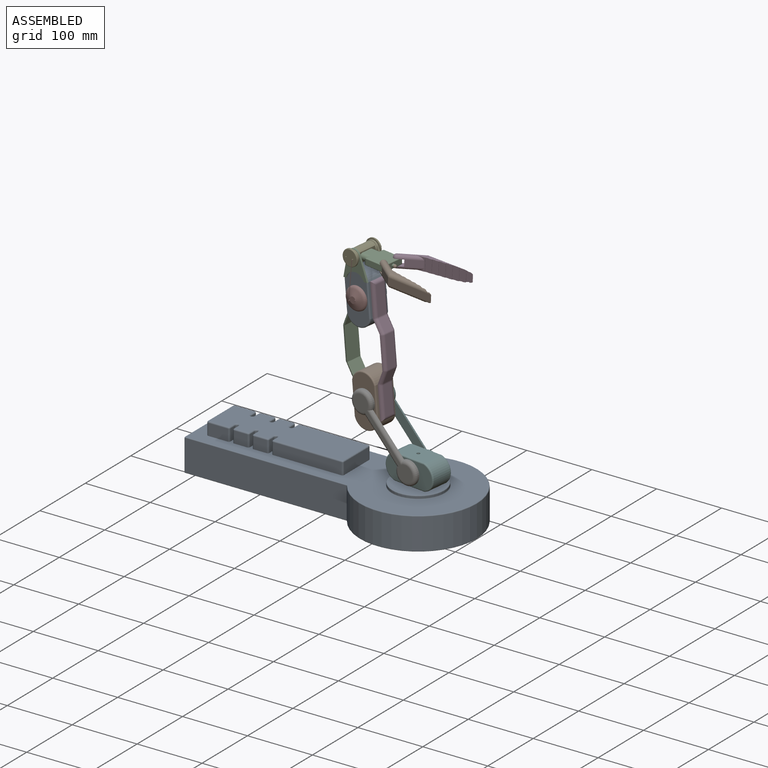
[diagram: assembled view]
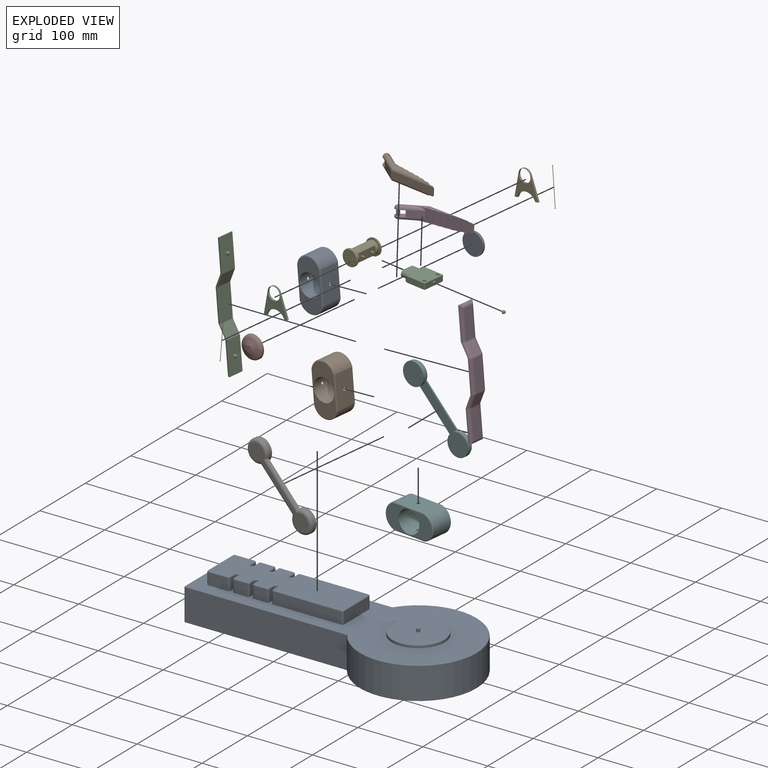
[diagram: exploded view]
GUIDED TOUR — MATED ASSEMBLY (Onshape document 5824cf844cdea0107dd9edf7, AutoMate assembly 5824cf844cdea0107dd9edf7_f4d5a8e5d3a8d71e8ba5b1b5_c78c1dad84c054eb283383fb_default)

This assembly has 19 components, labeled P0..P18 below (a component is one placed occurrence of a part; the same part can appear more than once), held together by 21 mates. A mate is a constraint between two components; its type names the relative motion it leaves free:
  CYLINDRICAL — leaves both rotation about and translation along the listed axis free,
  FASTENED — locks the two components together rigidly (no relative motion),
  REVOLUTE — leaves rotation about the listed axis free (a hinge).
Axis/direction vectors are unit vectors and 'through' points are millimeter coordinates, both in the assembly's world frame.

MATES
  1. CYLINDRICAL "Cylindrical 1": P7 <-> P12, axis (0.122, 0.993, 0.000) through (285.84, 149.75, 359.54) mm
  2. FASTENED "Fastened 7": P2 <-> P1, direction (0.992, -0.121, -0.034) through (336.56, 169.37, 357.66) mm
  3. FASTENED "Fastened 5": P4 <-> P0, direction (0.122, 0.993, 0.000) through (289.00, 192.82, 322.74) mm
  4. REVOLUTE "Revolute 4": P17 <-> P6, axis (0.122, 0.993, 0.000) through (299.53, 158.29, 163.41) mm
  5. REVOLUTE "Revolute 8": P12 <-> P4, axis (-0.122, -0.993, 0.000) through (285.99, 196.22, 359.73) mm
  6. REVOLUTE "Revolute 6": P16 <-> P0, axis (0.122, 0.993, 0.000) through (291.06, 194.59, 302.82) mm
  7. FASTENED "Fastened 4": P10 <-> P0, direction (-0.122, -0.993, 0.000) through (285.23, 162.05, 322.74) mm
  8. REVOLUTE "Revolute 7": P15 <-> P0, axis (-0.122, -0.993, 0.000) through (286.81, 159.85, 302.82) mm
  9. FASTENED "Fastened 3": P18 <-> P0, direction (-0.988, 0.121, -0.092) through (269.17, 179.64, 300.99) mm
  10. CYLINDRICAL "Cylindrical 2": P14 <-> P12, axis (-0.122, -0.993, 0.000) through (292.56, 204.61, 359.54) mm
  11. REVOLUTE "Revolute 2": P6 <-> P13, axis (0.122, 0.993, 0.000) through (374.40, 149.12, 88.05) mm
  12. FASTENED "Fastened 6": P2 <-> P12, direction (-0.992, 0.121, 0.034) through (289.85, 166.02, 359.47) mm
  13. REVOLUTE "Revolute 5": P8 <-> P13, axis (0.000, 0.000, -1.000) through (376.52, 166.49, 68.05) mm
  14. REVOLUTE "Revolute 3": P17 <-> P5, axis (0.122, 0.993, 0.000) through (303.78, 193.03, 163.41) mm
  15. REVOLUTE "Revolute 1": P5 <-> P13, axis (-0.122, -0.993, 0.000) through (378.65, 183.86, 88.05) mm
  16. REVOLUTE "Revolute 11": P14 <-> P16, axis (0.122, 0.993, 0.000) through (297.09, 204.31, 301.41) mm
  17. REVOLUTE "Revolute 9": P7 <-> P15, axis (-0.122, -0.993, 0.000) through (280.77, 150.12, 301.45) mm
  18. FASTENED "Fastened 2": P18 <-> P17, direction (-0.988, 0.121, -0.092) through (281.89, 178.08, 161.58) mm
  19. REVOLUTE "Revolute 10": P9 <-> P2, axis (-0.033, 0.004, -0.999) through (328.94, 157.71, 353.14) mm
  20. REVOLUTE "Revolute 12": P3 <-> P2, axis (0.033, -0.004, 0.999) through (331.97, 182.52, 353.14) mm
  21. FASTENED "Fastened 1": P11 <-> P17, direction (0.988, -0.121, 0.092) through (321.42, 173.24, 165.24) mm

ASSEMBLY ORDER
  1. P12 — the base component [order verified]
  2. P2 [order verified]
  3. P0 [order verified]
  4. P3 [order verified]
  5. P9 [order verified]
  6. P10 [order verified]
  7. P11 [order verified]
  8. P15 [order verified]
  9. P17 [order verified]
  10. P18 [order verified]
  11. P1 [order verified]
  12. P13 [order verified]
  13. P5 [order verified]
  14. P6 [order verified]
  15. P4 [order verified]
  16. P16 [order verified]
  17. P7 [order verified]
  18. P14 [order verified]
  19. P8 [order verified]
(P2, P3, P4, P9, P18 verified with a relaxed clearance tolerance: the source model stores slight part interference there.)
Order-tag legend:
  [order verified] — this step's position reverses a verified removal order: the component was checked to insert without passing through the ones already placed.

Of the 19 components, 4 carry the full construction recipe — the FeatureScript program that regenerates the part's solid from scratch; the rest are supplied as boundary geometry only.
Because this assembly has more than 12 components, the tour below covers the 12 most significant ones individually (every recipe-attached component first, then the largest by part volume), in assembly order; the remaining 7 are summarized together in a grouped section at the end.
Each toured component is shown spotlighted twice — in the assembled view, then in the exploded view, where a leader line traces a displaced component back to its assembled socket (saturated green if recipe-attached, orange if geometry-only; every other component desaturated gray) — followed by its recipe or geometry summary and the mates that hold it.
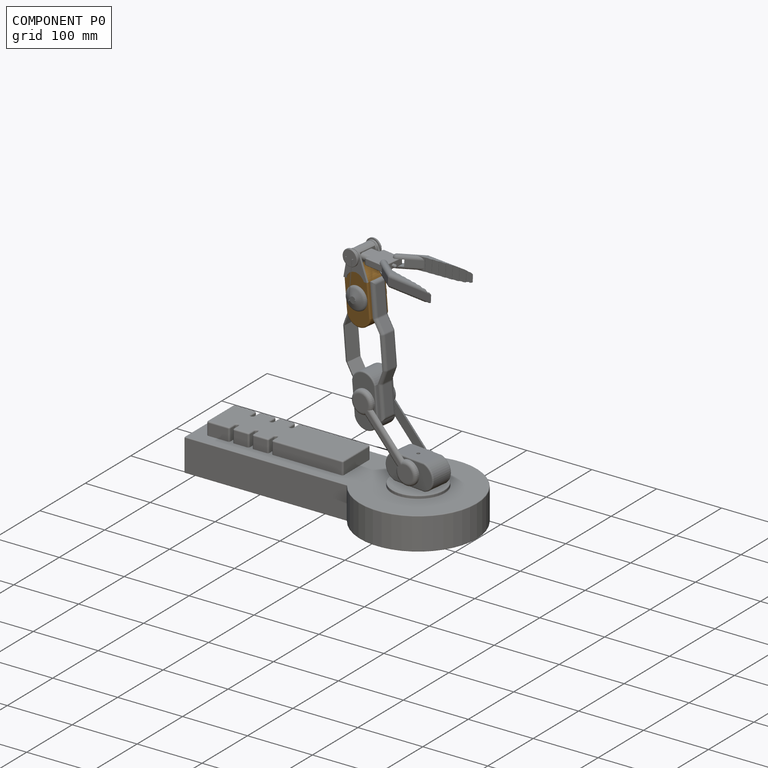
[diagram: component P0 — assembled]
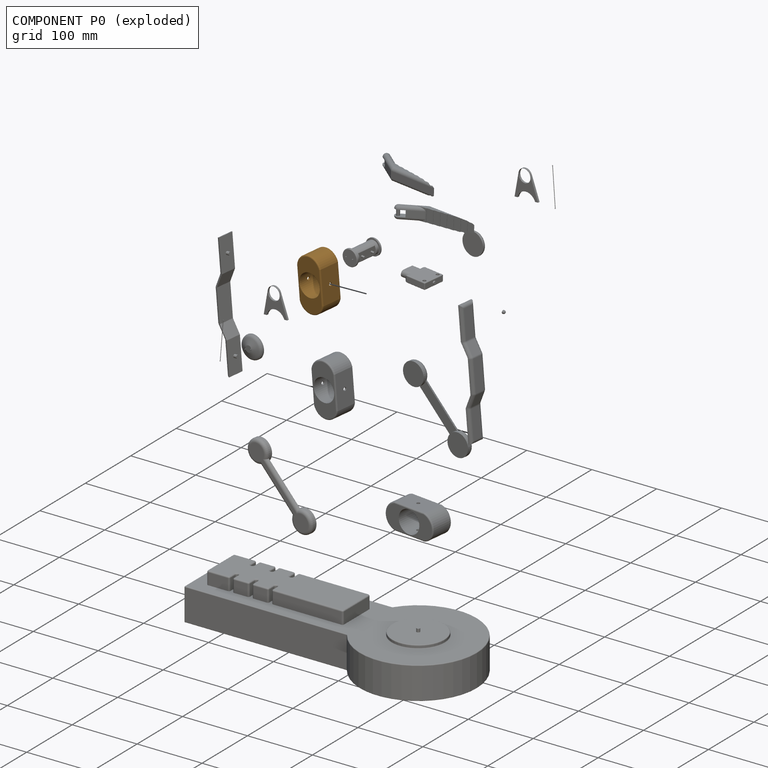
[diagram: component P0 — exploded]
COMPONENT P0 — geometry summary (no construction recipe available for this part):
  bounding box: 84.6 x 43.3 x 35.0 mm
  B-rep topology: 1 solid, 17 faces, 76 edges
  volume: 68316 mm^3 (53% of its bounding box)
  symmetry: 2-fold rotationally symmetric about the x axis; 2-fold rotationally symmetric about the y axis; 2-fold rotationally symmetric about the z axis; mirror-symmetric across its x mid-plane, y mid-plane, z mid-plane
Held by: FASTENED mate "Fastened 5" to P4; REVOLUTE mate "Revolute 6" to P16; FASTENED mate "Fastened 4" to P10; REVOLUTE mate "Revolute 7" to P15; FASTENED mate "Fastened 3" to P18.
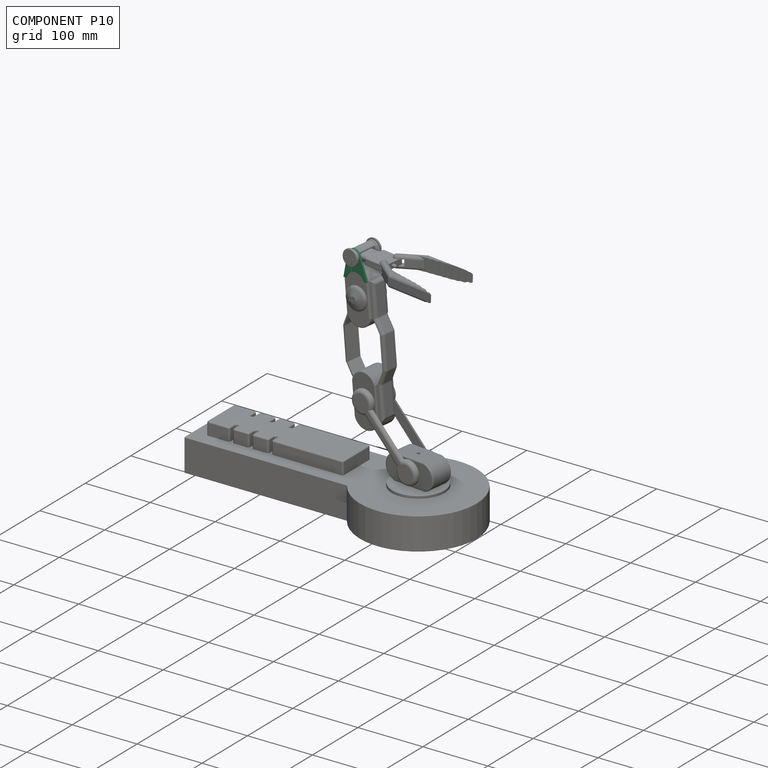
[diagram: component P10 — assembled]
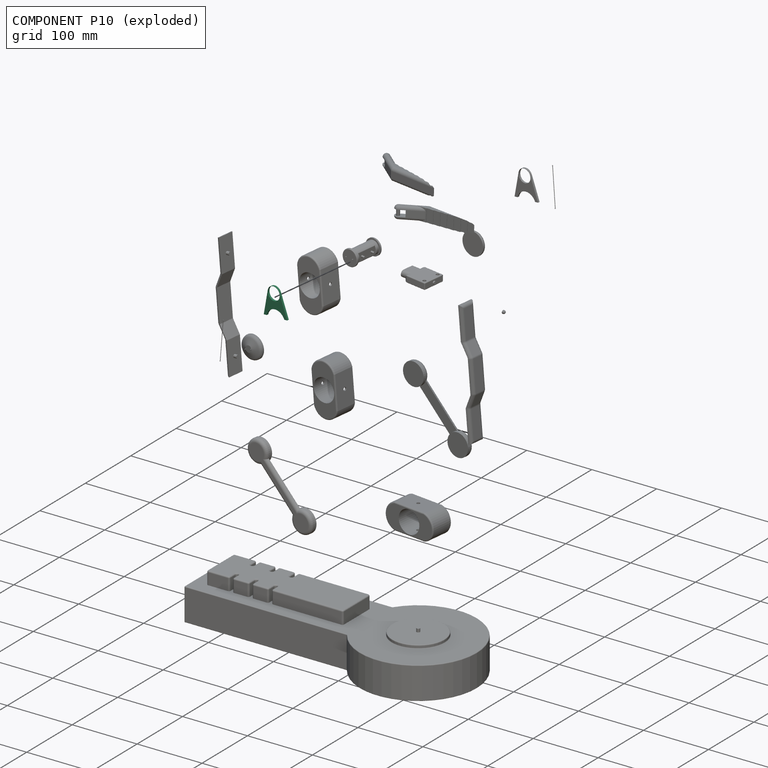
[diagram: component P10 — exploded]
COMPONENT P10 — same part as P4 (CADFS 00984863); its construction recipe is shown at P4.
Held by: FASTENED mate "Fastened 4" to P0.
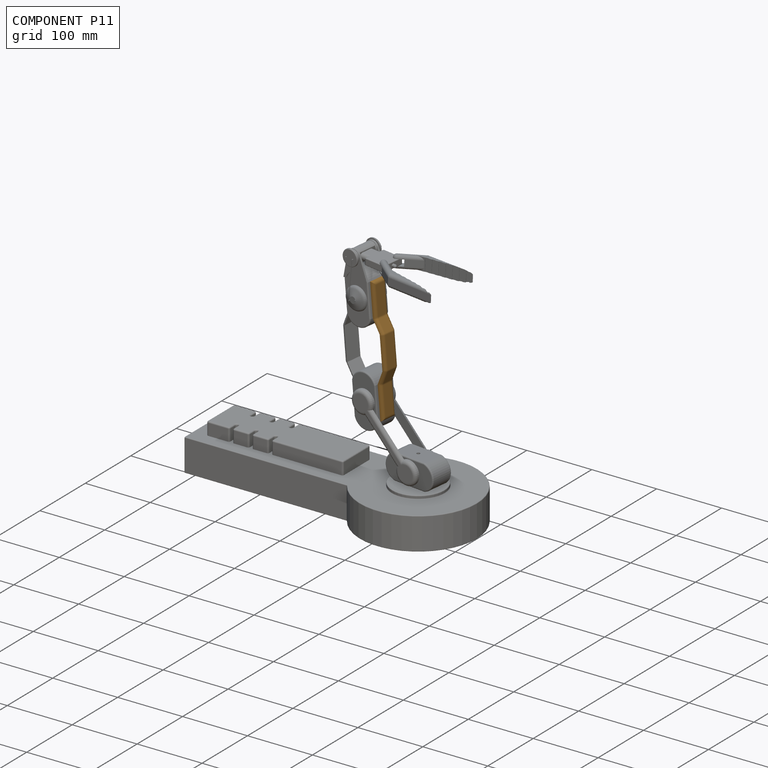
[diagram: component P11 — assembled]
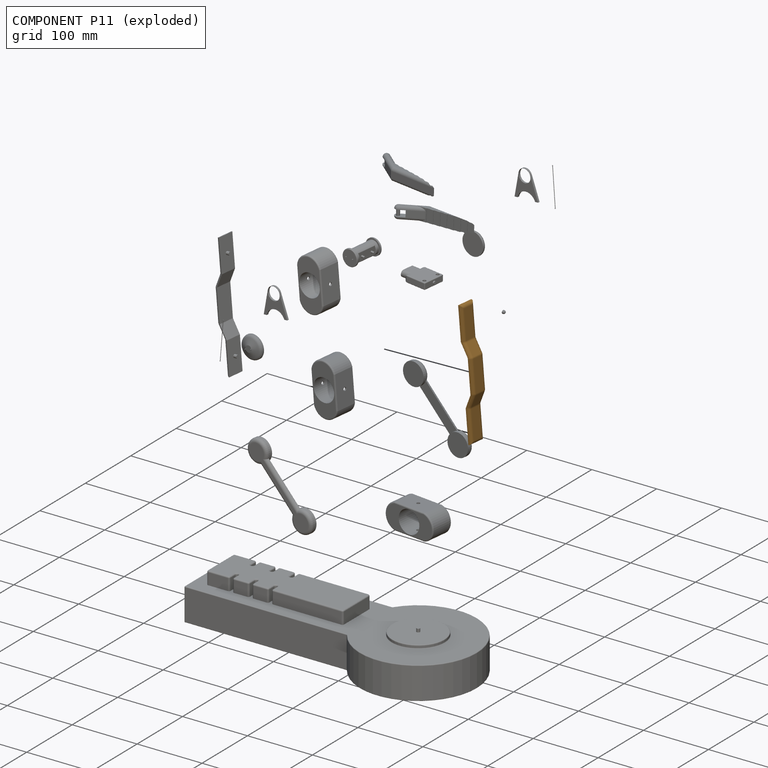
[diagram: component P11 — exploded]
COMPONENT P11 — geometry summary (no construction recipe available for this part):
  bounding box: 190.0 x 25.0 x 20.0 mm
  B-rep topology: 1 solid, 38 faces, 168 edges
  volume: 21637 mm^3 (23% of its bounding box)
  symmetry: 2-fold rotationally symmetric about the z axis; mirror-symmetric across its x mid-plane, y mid-plane
Held by: FASTENED mate "Fastened 1" to P17.
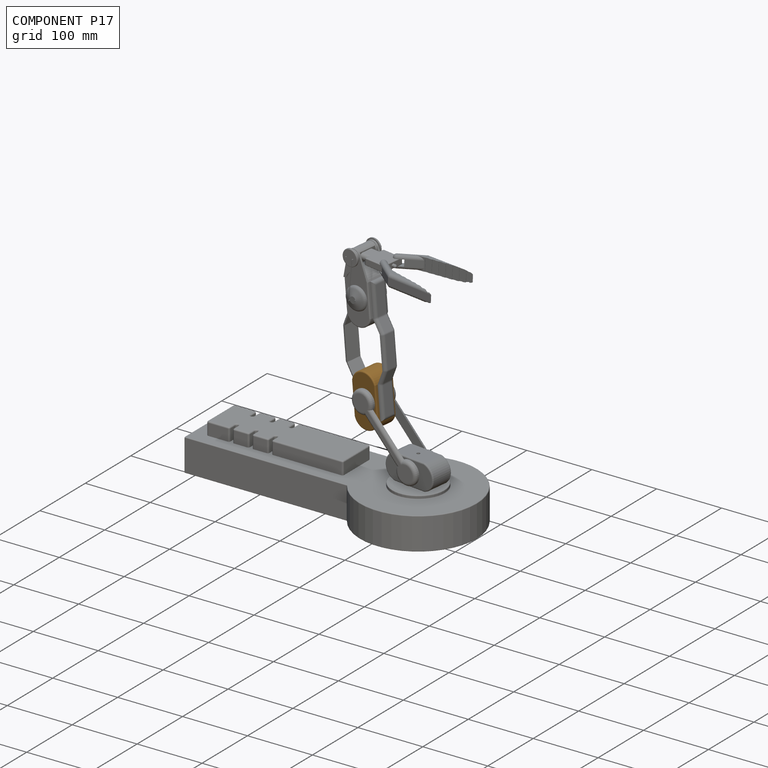
[diagram: component P17 — assembled]
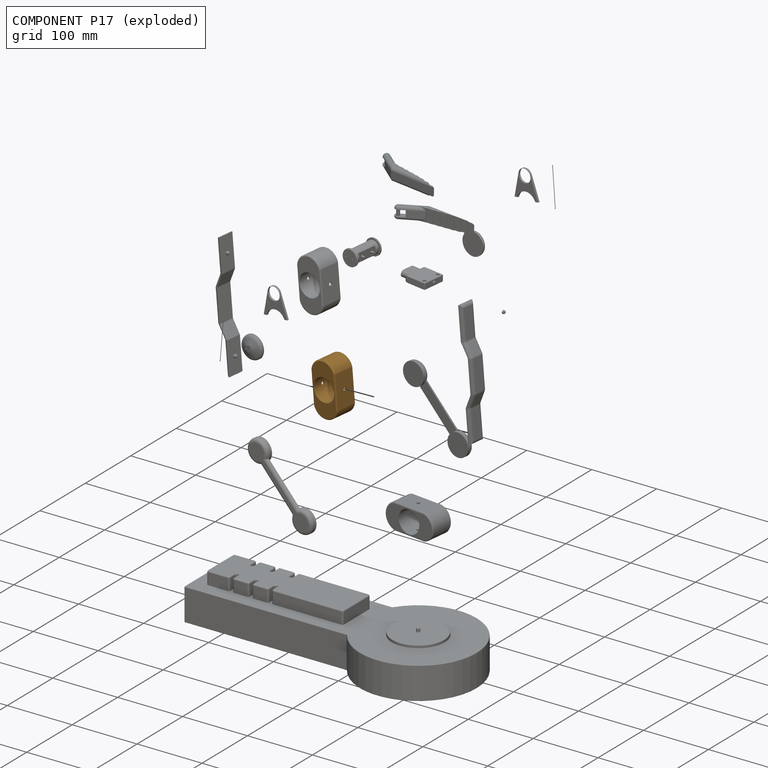
[diagram: component P17 — exploded]
COMPONENT P17 — geometry summary (no construction recipe available for this part):
  bounding box: 84.6 x 43.3 x 35.0 mm
  B-rep topology: 1 solid, 17 faces, 76 edges
  volume: 68316 mm^3 (53% of its bounding box)
  symmetry: 2-fold rotationally symmetric about the x axis; 2-fold rotationally symmetric about the y axis; 2-fold rotationally symmetric about the z axis; mirror-symmetric across its x mid-plane, y mid-plane, z mid-plane
Held by: REVOLUTE mate "Revolute 4" to P6; REVOLUTE mate "Revolute 3" to P5; FASTENED mate "Fastened 2" to P18; FASTENED mate "Fastened 1" to P11.
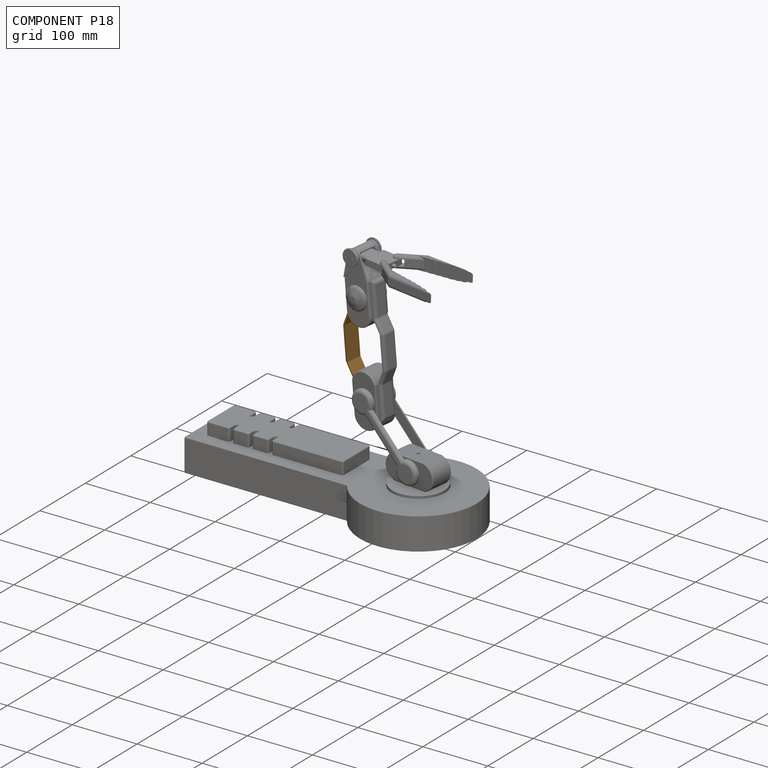
[diagram: component P18 — assembled]
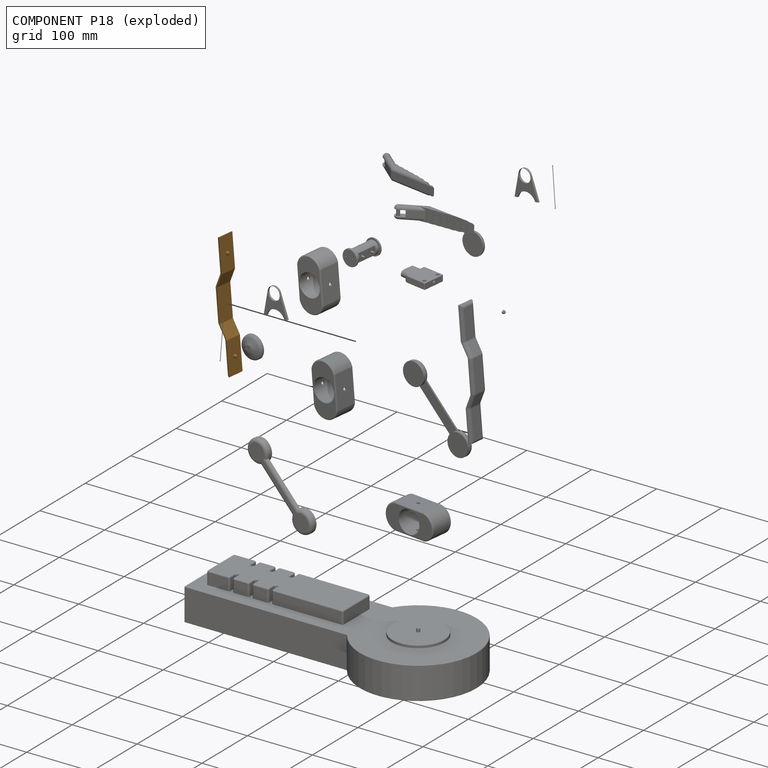
[diagram: component P18 — exploded]
COMPONENT P18 — geometry summary (no construction recipe available for this part):
  bounding box: 190.0 x 25.0 x 20.0 mm
  B-rep topology: 1 solid, 38 faces, 168 edges
  volume: 21637 mm^3 (23% of its bounding box)
  symmetry: 2-fold rotationally symmetric about the z axis; mirror-symmetric across its x mid-plane, y mid-plane
Held by: FASTENED mate "Fastened 3" to P0; FASTENED mate "Fastened 2" to P17.
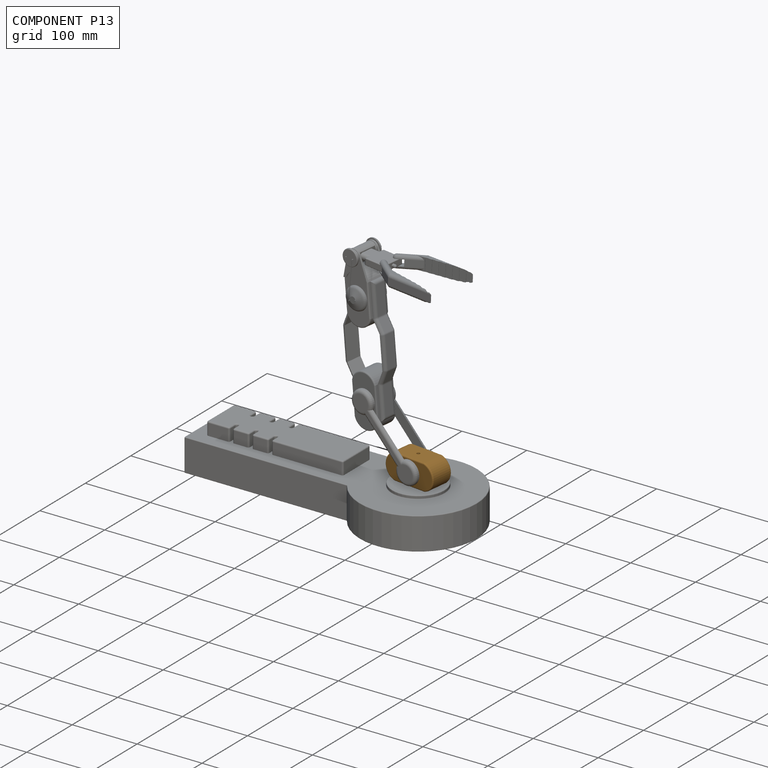
[diagram: component P13 — assembled]
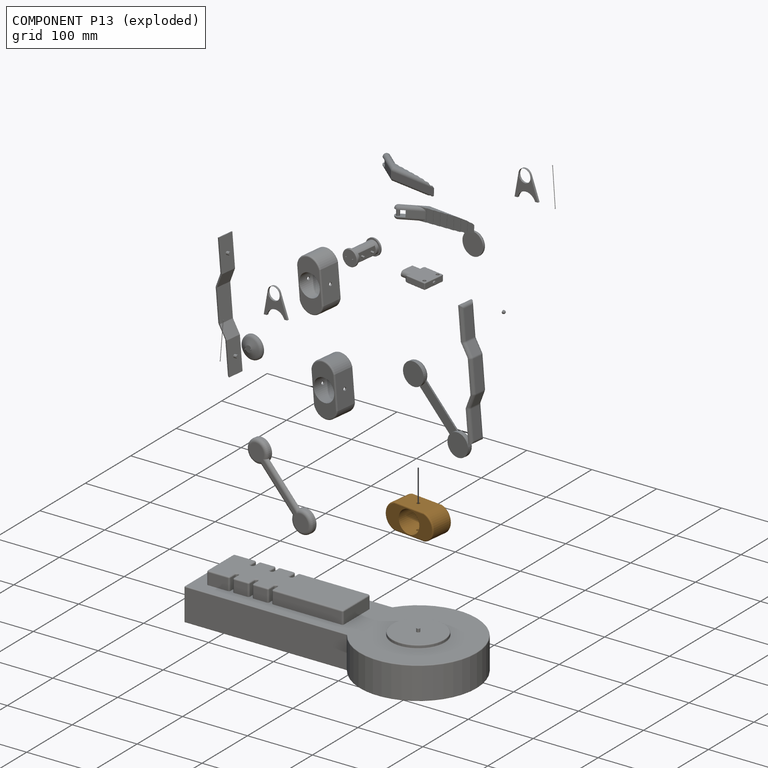
[diagram: component P13 — exploded]
COMPONENT P13 — geometry summary (no construction recipe available for this part):
  bounding box: 84.6 x 43.3 x 35.0 mm
  B-rep topology: 1 solid, 17 faces, 76 edges
  volume: 68316 mm^3 (53% of its bounding box)
  symmetry: 2-fold rotationally symmetric about the x axis; 2-fold rotationally symmetric about the y axis; 2-fold rotationally symmetric about the z axis; mirror-symmetric across its x mid-plane, y mid-plane, z mid-plane
Held by: REVOLUTE mate "Revolute 2" to P6; REVOLUTE mate "Revolute 5" to P8; REVOLUTE mate "Revolute 1" to P5.
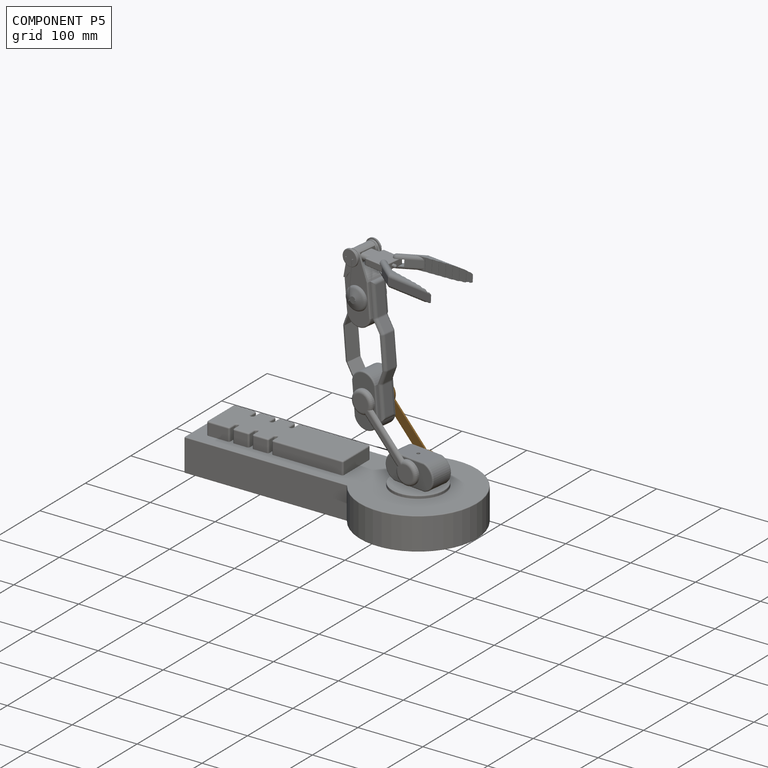
[diagram: component P5 — assembled]
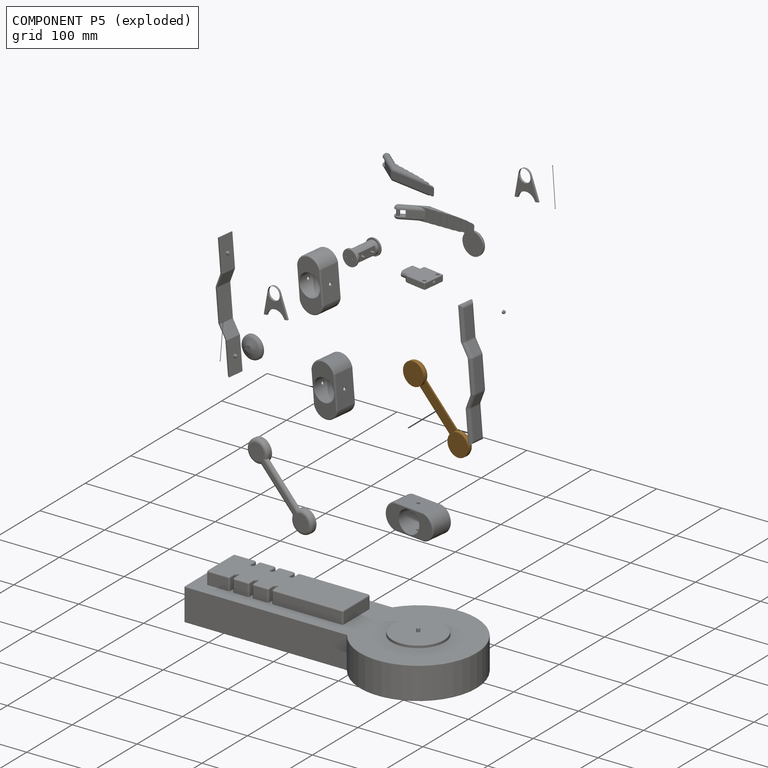
[diagram: component P5 — exploded]
COMPONENT P5 — geometry summary (no construction recipe available for this part):
  bounding box: 144.5 x 37.9 x 10.0 mm
  B-rep topology: 1 solid, 10 faces, 38 edges
  volume: 22912 mm^3 (42% of its bounding box)
  symmetry: 2-fold rotationally symmetric about the y axis; mirror-symmetric across its x mid-plane, z mid-plane
Held by: REVOLUTE mate "Revolute 3" to P17; REVOLUTE mate "Revolute 1" to P13.
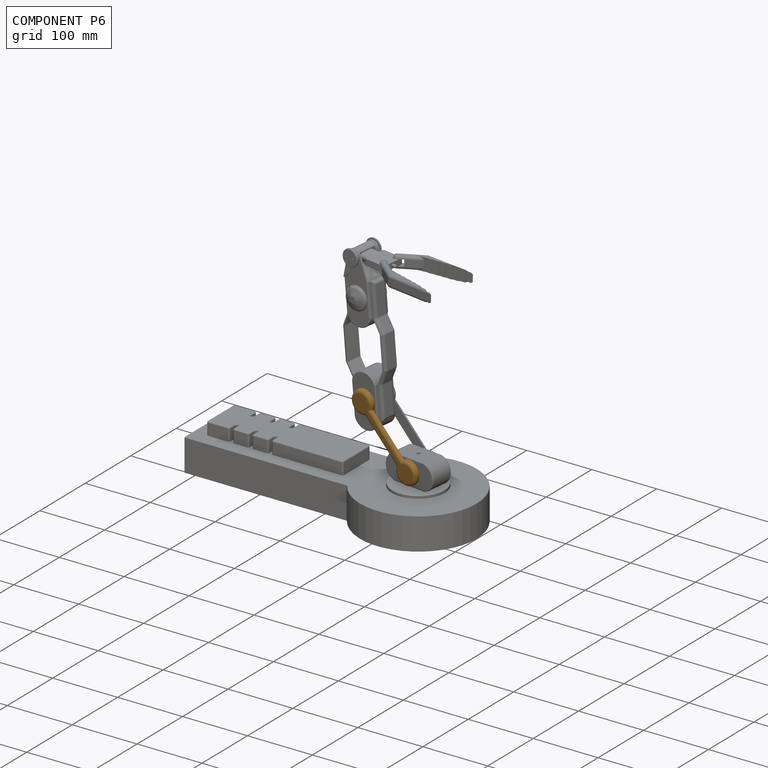
[diagram: component P6 — assembled]
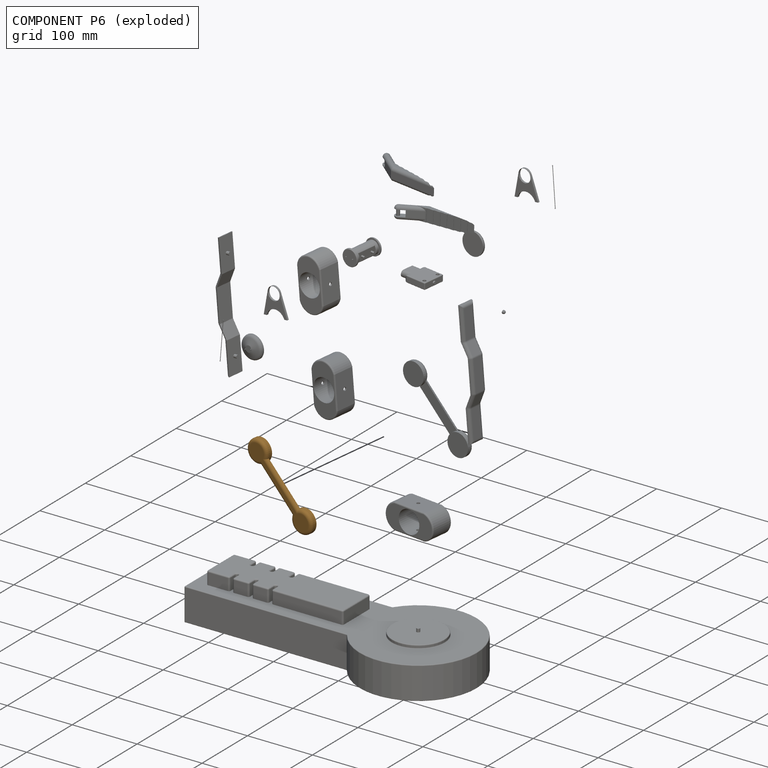
[diagram: component P6 — exploded]
COMPONENT P6 — geometry summary (no construction recipe available for this part):
  bounding box: 144.5 x 37.9 x 10.0 mm
  B-rep topology: 1 solid, 10 faces, 38 edges
  volume: 22912 mm^3 (42% of its bounding box)
  symmetry: 2-fold rotationally symmetric about the y axis; mirror-symmetric across its x mid-plane, z mid-plane
Held by: REVOLUTE mate "Revolute 4" to P17; REVOLUTE mate "Revolute 2" to P13.
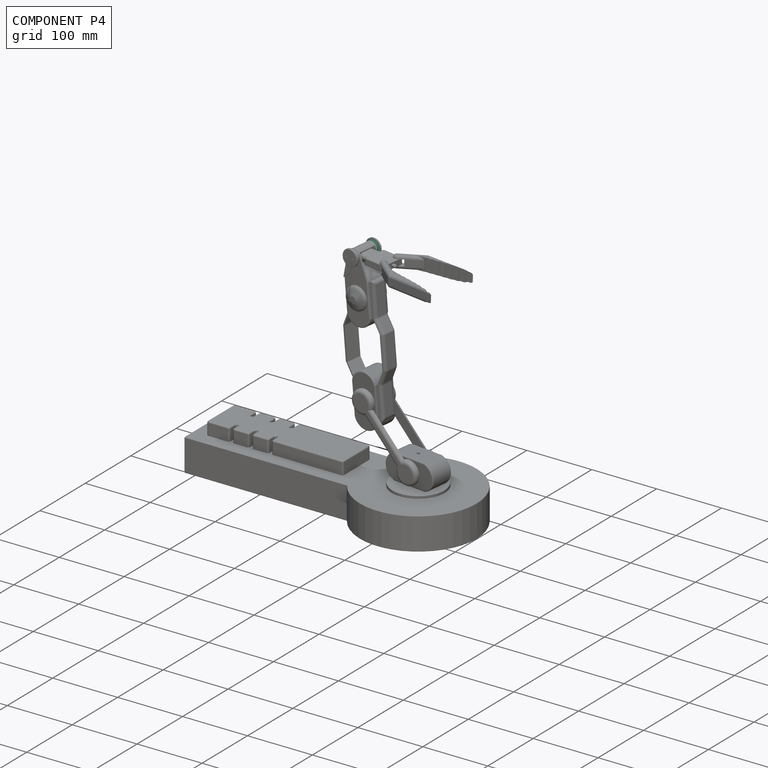
[diagram: component P4 — assembled]
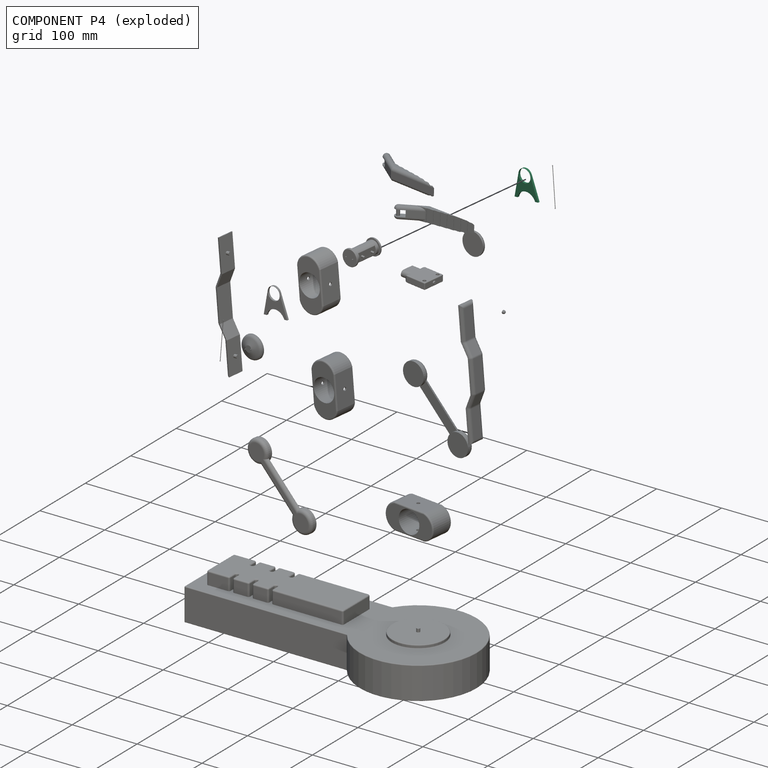
[diagram: component P4 — exploded]
COMPONENT P4 — recipe-attached (CADFS 00984863, mesh-verified: the recipe's output STEP matches this component's geometry to below the mesh-comparison resolution (tessellation chordal tolerance ~0.0877 mm)).
Held by: FASTENED mate "Fastened 5" to P0; REVOLUTE mate "Revolute 8" to P12.
Construction recipe (FeatureScript — the CAD program that rebuilds this solid; sketch coordinates are in the units given by the * unit suffixes, e.g. mm):

FeatureScript 1511;
import(path : "onshape/std/geometry.fs", version : "1511.0");
import(path : "onshape/std/common.fs", version : "1511.0");
const mm = millimeter;
const VERTEX = EntityType.VERTEX;
const EDGE = EntityType.EDGE;
const FACE = EntityType.FACE;
const BODY = EntityType.BODY;
function v(x, y){return vector(x, y);}
function OD(order){return orderDisambiguation(order);}
function OSD(set){return originalSetDisambiguation(set);}
function TD(topology){return topologyDisambiguation(topology);}
function TDD(query){return trueDependencyDisambiguation(query);}
function sQuery(a, b, c) {return sketchEntityQuery(a, b, c);}

annotation { "Feature Type Name" : "Feature", "Feature Type Description" : "" }
export const myFeature = defineFeature(function(context is Context, id is Id, definition is map)
    precondition{}
    {
        {
            var Q0;
            Q0=qCreatedBy(makeId("Front.planeOp"),FACE);
            var sketch = newSketch(context, id + "F0", { "sketchPlane" : qUnion([Q0])});
            skLineSegment(sketch, "E0", {"start": v(-20, 0) * mm, "end": v(-15, 0) * mm});
            skLineSegment(sketch, "E1", {"start": v(15, 0) * mm, "end": v(20, 0) * mm});
            skArc(sketch, "E2", {"start": v(15, 0) * mm, "mid": v(0, 10.81) * mm, "end": v(-15, 0) * mm});
            skLineSegment(sketch, "E3", {"start": v(-20, 0) * mm, "end": v(-10, 35) * mm});
            skLineSegment(sketch, "E4", {"start": v(20, 0) * mm, "end": v(10, 35) * mm});
            skArc(sketch, "E5", {"start": v(10, 35) * mm, "mid": v(0, 42.54) * mm, "end": v(-10, 35) * mm});
            skCircle(sketch, "E6", {"center": v(0, 32.14) * mm, "radius": 10 * mm});
            skSolve(sketch);
        }
        {
            var Q0;
            Q0=qSketchRegion(id+"F0",true);
            extrude(context, id + "F1", {"entities" : qUnion([Q0]), "depth" : 3 * mm});
        }
    });
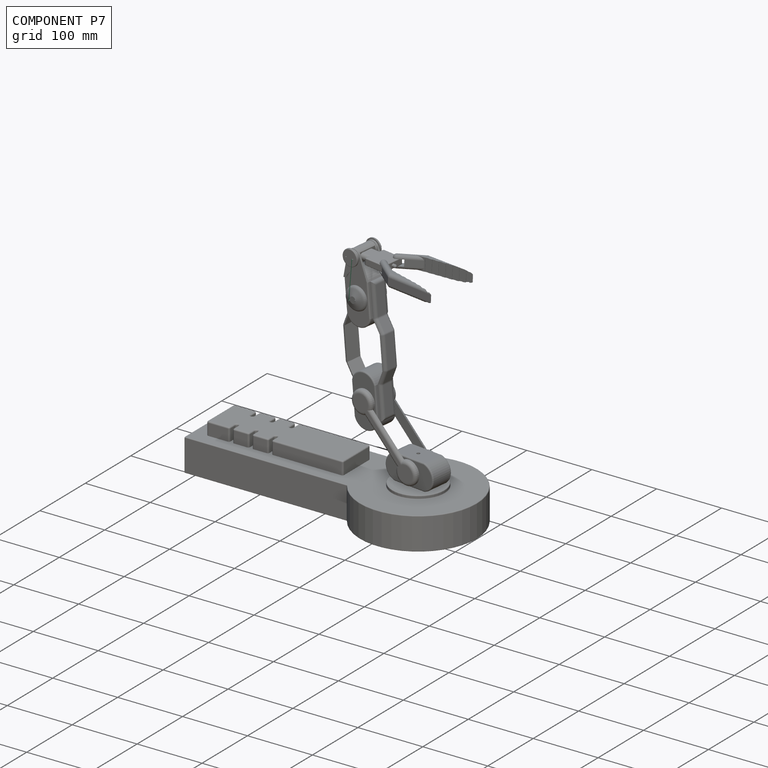
[diagram: component P7 — assembled]
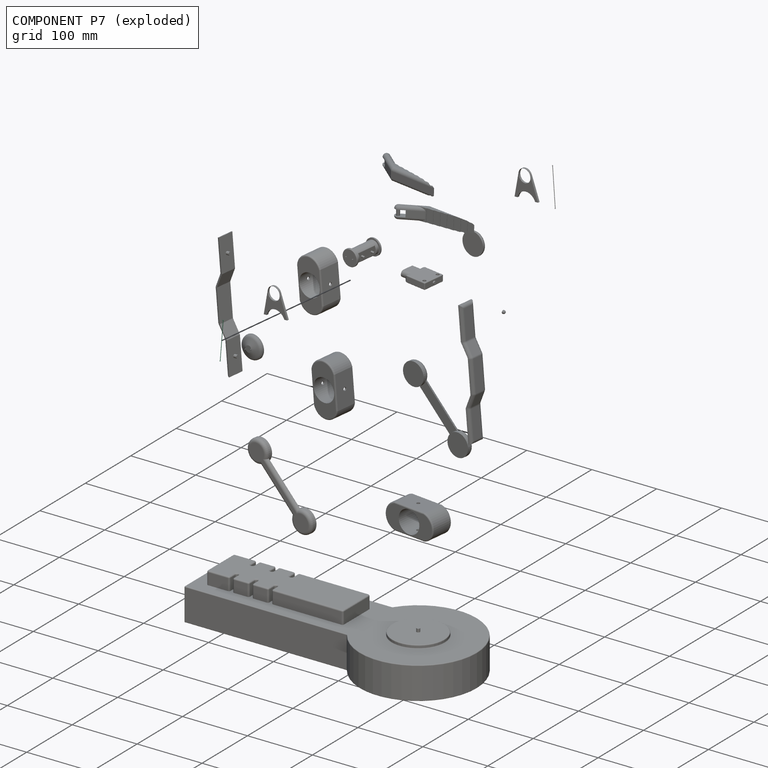
[diagram: component P7 — exploded]
COMPONENT P7 — recipe-attached (CADFS 00602043, mesh-verified: the recipe's output STEP matches this component's geometry to below the mesh-comparison resolution (tessellation chordal tolerance ~0.0896 mm)).
Held by: CYLINDRICAL mate "Cylindrical 1" to P12; REVOLUTE mate "Revolute 9" to P15.
Construction recipe (FeatureScript — the CAD program that rebuilds this solid; sketch coordinates are in the units given by the * unit suffixes, e.g. mm):

FeatureScript 1511;
import(path : "onshape/std/geometry.fs", version : "1511.0");
import(path : "onshape/std/common.fs", version : "1511.0");
const mm = millimeter;
const VERTEX = EntityType.VERTEX;
const EDGE = EntityType.EDGE;
const FACE = EntityType.FACE;
const BODY = EntityType.BODY;
function v(x, y){return vector(x, y);}
function OD(order){return orderDisambiguation(order);}
function OSD(set){return originalSetDisambiguation(set);}
function TD(topology){return topologyDisambiguation(topology);}
function TDD(query){return trueDependencyDisambiguation(query);}
function sQuery(a, b, c) {return sketchEntityQuery(a, b, c);}

annotation { "Feature Type Name" : "Feature", "Feature Type Description" : "" }
export const myFeature = defineFeature(function(context is Context, id is Id, definition is map)
    precondition{}
    {
        {
            var Q0;
            Q0=qCreatedBy(makeId("Front.planeOp"),FACE);
            var sketch = newSketch(context, id + "F0", { "sketchPlane" : qUnion([Q0])});
            skLineSegment(sketch, "E0.bottom", {"start": v(0, 0) * mm, "end": v(57, 0) * mm});
            skLineSegment(sketch, "E0.top", {"start": v(0, 0.5) * mm, "end": v(57, 0.5) * mm});
            skLineSegment(sketch, "E0.left", {"start": v(0, 0) * mm, "end": v(0, 0.5) * mm});
            skLineSegment(sketch, "E0.right", {"start": v(57, 0) * mm, "end": v(57, 0.5) * mm});
            skArc(sketch, "E1", {"start": v(0, 0.5) * mm, "mid": v(-1.35, 0.25) * mm, "end": v(0, 0) * mm});
            skArc(sketch, "E2", {"start": v(57, 0) * mm, "mid": v(58.35, 0.25) * mm, "end": v(57, 0.5) * mm});
            skCircle(sketch, "E3", {"center": v(-0.65, 0.25) * mm, "radius": 0.5 * mm});
            skCircle(sketch, "E4", {"center": v(57.65, 0.25) * mm, "radius": 0.5 * mm});
            skSolve(sketch);
        }
        {
            var Q0;
            Q0=qSketchRegion(id+"F0",true);
            extrude(context, id + "F1", {"entities" : qUnion([Q0]), "depth" : 0.5 * mm});
        }
    });
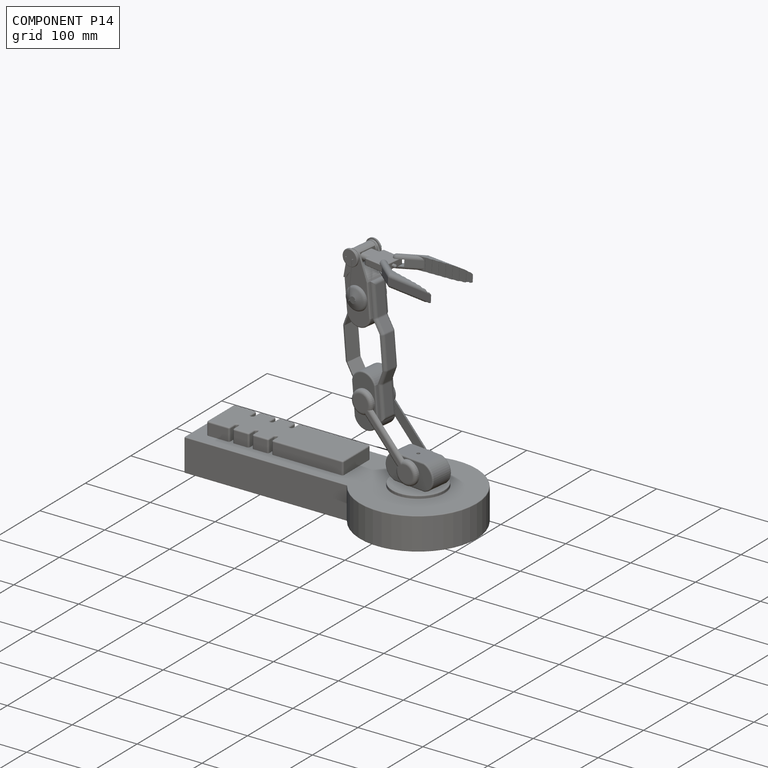
[diagram: component P14 — assembled]
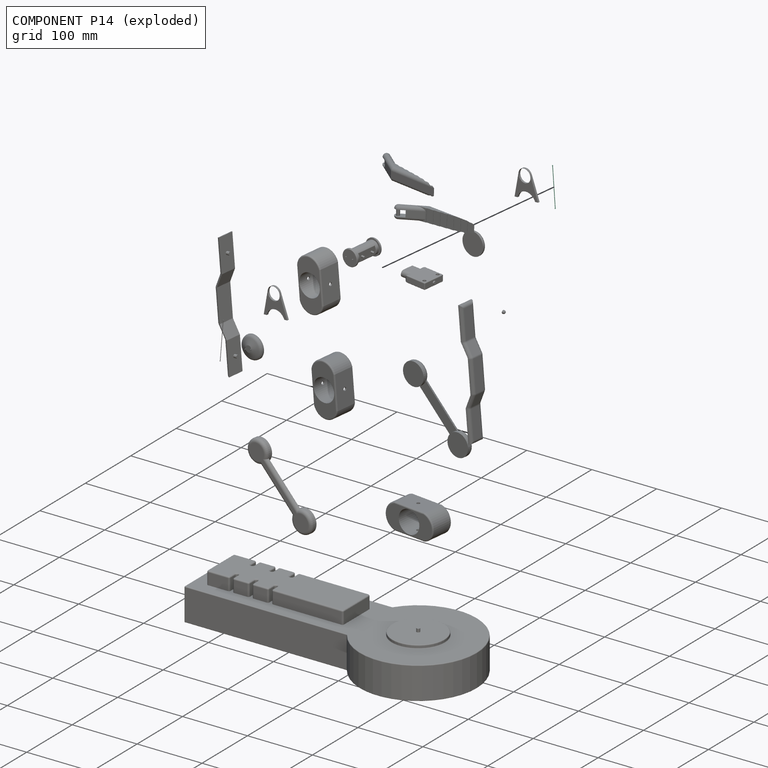
[diagram: component P14 — exploded]
COMPONENT P14 — same part as P7 (CADFS 00602043); its construction recipe is shown at P7.
Held by: CYLINDRICAL mate "Cylindrical 2" to P12; REVOLUTE mate "Revolute 11" to P16.
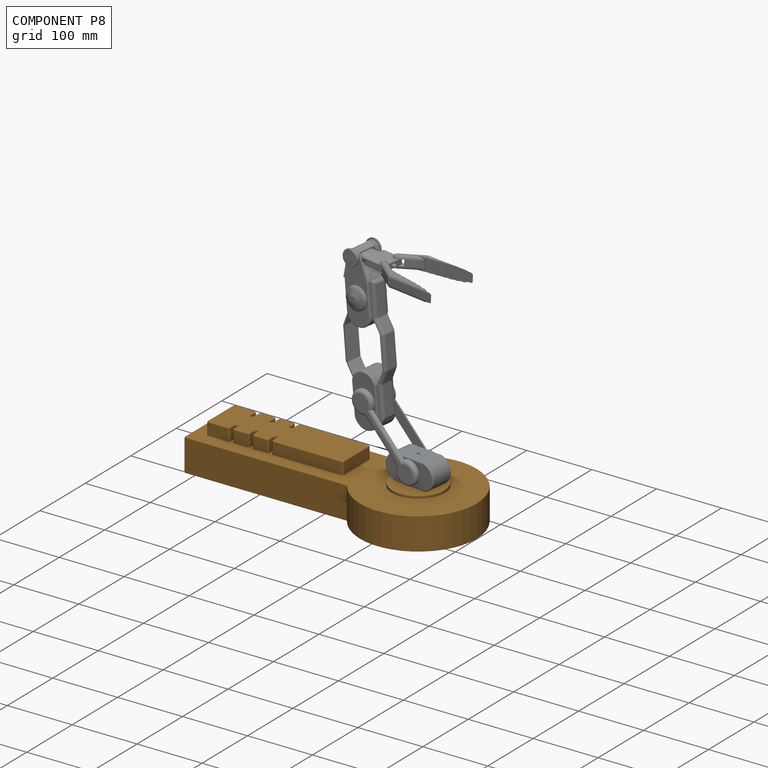
[diagram: component P8 — assembled]
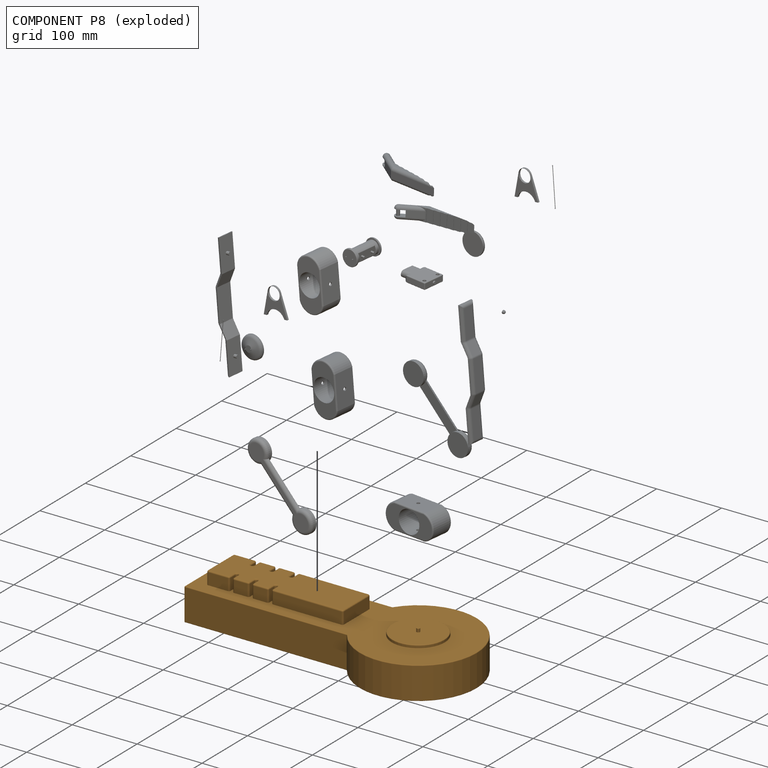
[diagram: component P8 — exploded]
COMPONENT P8 — geometry summary (no construction recipe available for this part):
  bounding box: 422.6 x 195.1 x 70.0 mm
  B-rep topology: 1 solid, 113 faces, 540 edges
  volume: 2742501 mm^3 (48% of its bounding box)
  symmetry: mirror-symmetric across its y mid-plane
Held by: REVOLUTE mate "Revolute 5" to P13.
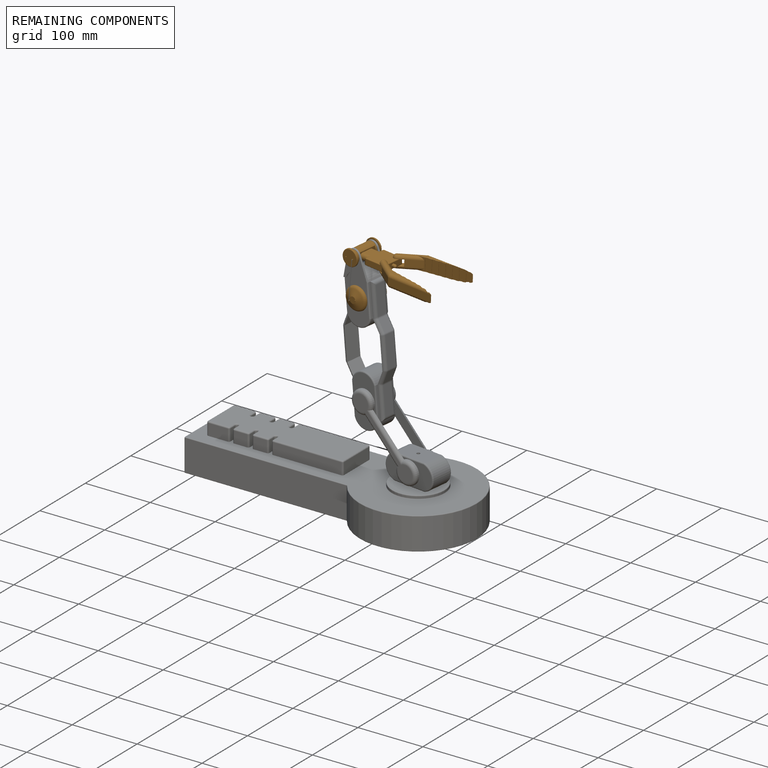
[diagram: remaining components — assembled]
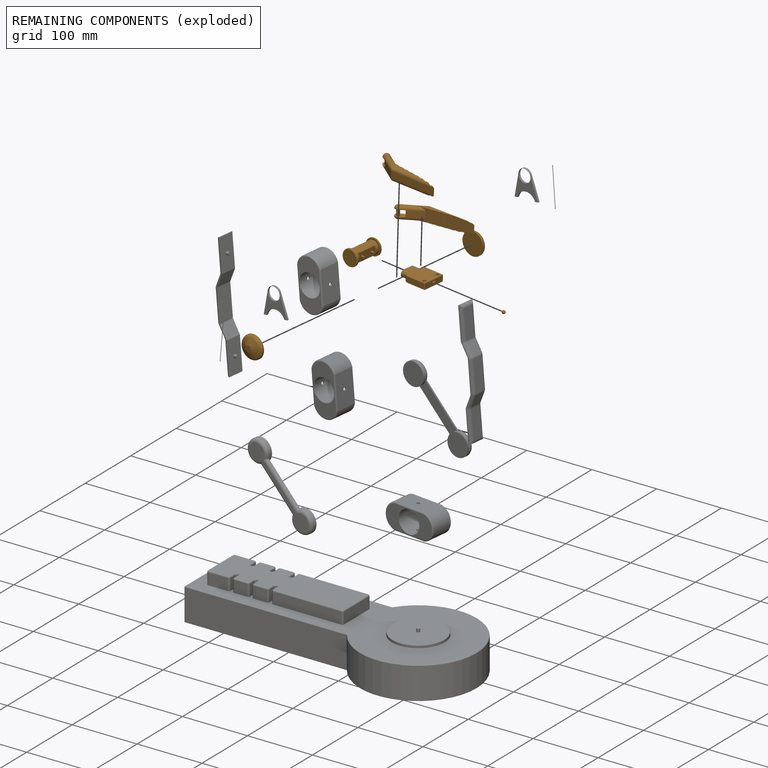
[diagram: remaining components — exploded]
REMAINING COMPONENTS (grouped) — the 7 components below fall outside the per-component tour by the significance rule stated above; both spotlight views highlight the whole group.
  P12: bounding box 51.1 x 27.2 x 27.2 mm, volume 15160 mm^3. Held by: CYLINDRICAL mate "Cylindrical 1" to P7; REVOLUTE mate "Revolute 8" to P4; CYLINDRICAL mate "Cylindrical 2" to P14; FASTENED mate "Fastened 6" to P2.
  P2: bounding box 47.0 x 35.0 x 10.0 mm, volume 13891 mm^3. Held by: FASTENED mate "Fastened 7" to P1; FASTENED mate "Fastened 6" to P12; REVOLUTE mate "Revolute 10" to P9; REVOLUTE mate "Revolute 12" to P3.
  P3: bounding box 105.0 x 44.2 x 20.0 mm, volume 13154 mm^3. Held by: REVOLUTE mate "Revolute 12" to P2.
  P9: bounding box 105.0 x 44.2 x 20.0 mm, volume 13154 mm^3. Held by: REVOLUTE mate "Revolute 10" to P2.
  P15: bounding box 37.9 x 37.9 x 13.9 mm, volume 6790 mm^3. Held by: REVOLUTE mate "Revolute 7" to P0; REVOLUTE mate "Revolute 9" to P7.
  P1: bounding box 5.0 x 5.0 x 4.8 mm, volume 55 mm^3. Held by: FASTENED mate "Fastened 7" to P2.
  P16: bounding box 37.9 x 37.9 x 13.9 mm, volume 6790 mm^3. Held by: REVOLUTE mate "Revolute 6" to P0; REVOLUTE mate "Revolute 11" to P14.
PROVENANCE & LICENSES
Assembly (occurrences, transforms, mates, per-part STEP geometry): AutoMate dataset, Zenodo record 7776208, CC0.
Construction recipes: CADFS (HuggingFace VladPyatov/CADFS, CC-BY-4.0, layered over the ABC dataset), FeatureScript reconstruction programs keyed by ABC model id.
Join: ABC meta listings map ABC model id -> Onshape documentId; within a shared document, parts are matched by geometric signature (bounding-box dims + volume at 0.1% relative tolerance, exact B-rep face/solid counts).
Verification: 4 of this assembly's 19 components carry a recipe attachment, and every attachment is mesh-verified: the CADFS STEP and the AutoMate member STEP were compared as meshes in their shared local frame (symmetric sampled-point-to-mesh distance); worst across the 4 attachments: below the mesh-comparison resolution (tessellation chordal tolerance ~0.0896 mm) on a 60 mm part.
Renders: orthographic iso camera (az 35 / el 25); the floor grid conveys scale (grid pitch printed in each image; no ruler). In the exploded view each component is displaced by its stored offset vector: the offsets alone carry the explosion direction (mate normal/axis signs are not orientation cues and do not encode it), and separation distances are assigned per mate-chain, not proportionally to assembly-order depth.
